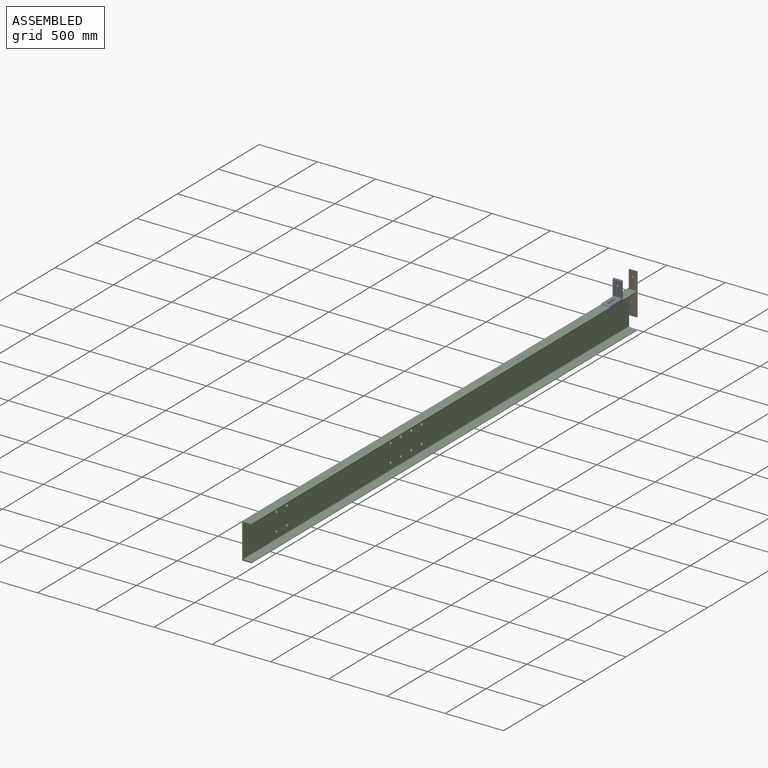
[diagram: assembled view]
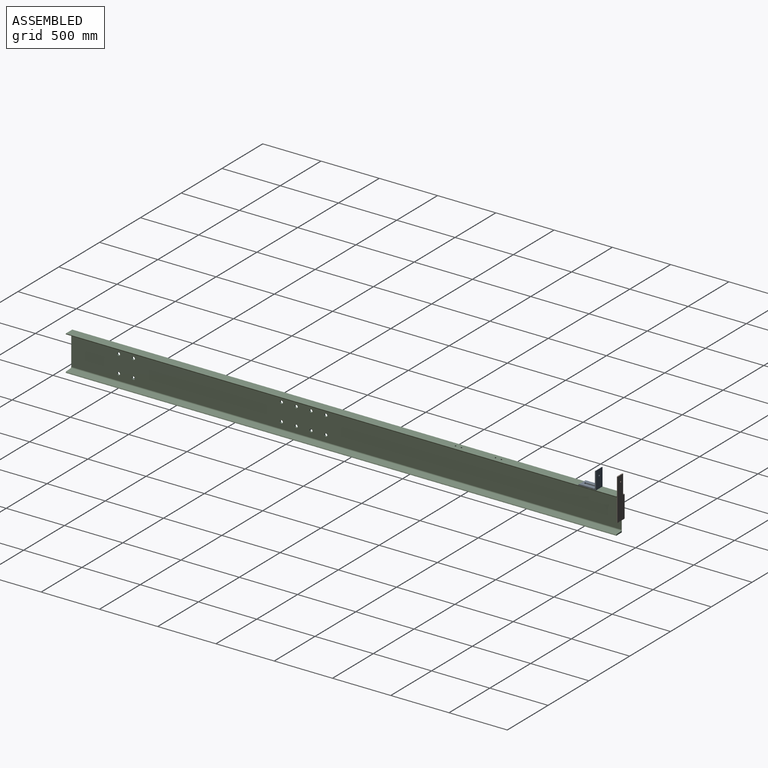
[diagram: assembled view, second angle]
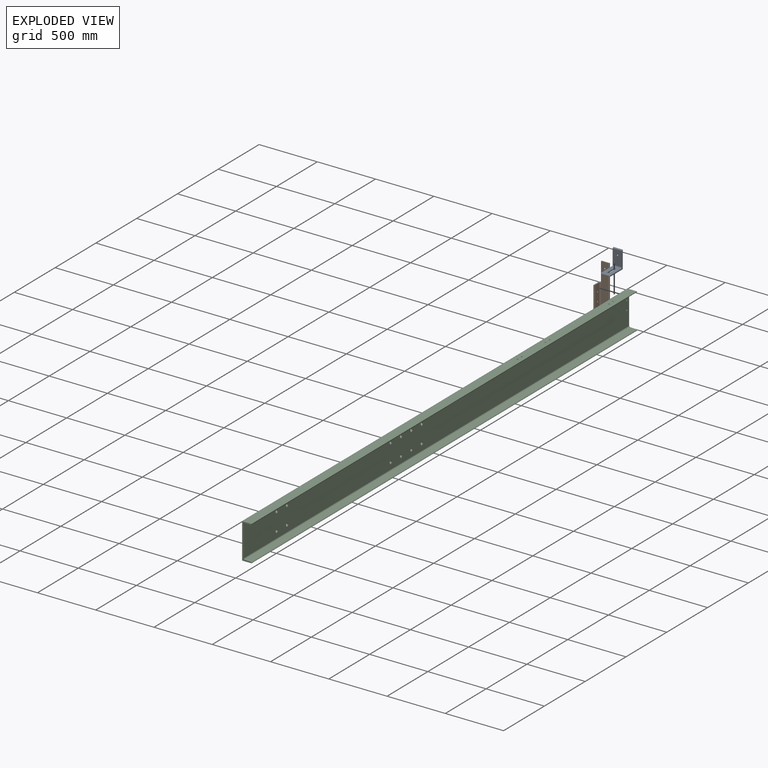
[diagram: exploded view]
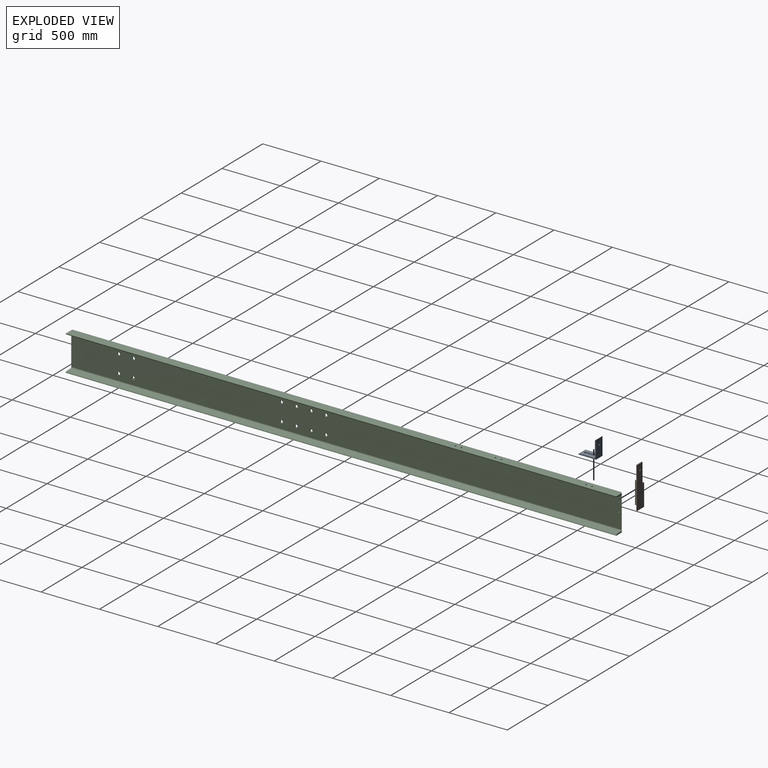
[diagram: exploded view, second angle]
ASSEMBLY  parts=3 mates=3
PART A: 14 faces, bbox 79.4x152.4x152.4 mm
  f0: plane 152.4x79.38mm, normal (0,1,0), area 11970.1mm2, adj f1,f6,f7,f8,f9
  f1: cylinder r=9.53mm len=79.38mm, axis (-1,0,0), area 1187.6mm2, adj f0,f2,f7,f8
  f2: plane 123.83x79.38mm, normal (0,-1,0), area 9701.9mm2, adj f1,f3,f7,f8,f9
  f3: cylinder r=9.53mm len=79.38mm, axis (-1,0,0), area 1187.6mm2, adj f2,f4,f7,f8
  f4: plane 123.83x79.38mm, normal (0,0,1), area 8556.9mm2, adj f3,f5,f7,f8,f10,f11,f12,f13
  f5: cylinder r=9.53mm len=79.38mm, axis (-1,0,0), area 1187.6mm2, adj f4,f6,f7,f8
  f6: plane 152.4x79.38mm, normal (0,0,-1), area 10825mm2, adj f0,f5,f7,f8,f10,f11,f12,f13
  f7: plane 152.4x152.4mm, normal (1,0,0), area 2793mm2, adj f0,f1,f2,f3,f4,f5,f6
  f8: plane 152.4x152.4mm, normal (-1,0,0), area 2793mm2, adj f0,f1,f2,f3,f4,f5,f6
  f9: cylinder r=6.35mm len=12.7mm, axis (0,1,0), area 380mm2, adj f0,f2
  f10: cylinder r=7.14mm len=14.29mm, axis (0,0,-1), area 213.8mm2, adj f4,f6,f11,f13
  f11: plane 77.79x9.53mm, normal (1,0,0), area 740.9mm2, adj f4,f6,f10,f12
  f12: cylinder r=7.14mm len=14.29mm, axis (0,0,-1), area 213.8mm2, adj f4,f6,f11,f13
  f13: plane 77.79x9.53mm, normal (-1,0,0), area 740.9mm2, adj f4,f6,f10,f12
PART B: 14 faces, bbox 355.6x88.9x76.2 mm
  f0: plane 190.5x76.2mm, normal (0,1,0), area 14262.7mm2, adj f1,f2,f8,f9,f10,f11
  f1: plane 355.6x88.9mm, normal (0,0,-1), area 28341mm2, adj f0,f6,f7,f8,f11,f12,f13
  f2: cylinder r=9.53mm len=190.5mm, axis (-1,0,0), area 2850.2mm2, adj f0,f3,f8,f11
  f3: plane 190.5x47.63mm, normal (0,-1,0), area 8819.2mm2, adj f2,f4,f8,f9,f10,f11
  f4: cylinder r=9.53mm len=190.5mm, axis (-1,0,0), area 2850.2mm2, adj f3,f5,f8,f11
  f5: plane 355.6x60.33mm, normal (0,0,1), area 21324.9mm2, adj f4,f6,f7,f8,f12,f13
  f6: cylinder r=9.53mm len=355.6mm, axis (-1,0,0), area 5320.4mm2, adj f1,f5,f7,f8
  f7: plane 69.85x9.53mm, normal (1,0,0), area 645.9mm2, adj f1,f5,f6,f12
  f8: plane 88.9x76.2mm, normal (-1,0,0), area 1462.4mm2, adj f0,f1,f2,f3,f4,f5,f6
  f9: cylinder r=6.35mm len=12.7mm, axis (0,1,0), area 380mm2, adj f0,f3
  f10: cylinder r=6.35mm len=12.7mm, axis (0,1,0), area 380mm2, adj f0,f3
  f11: plane 76.2x19.05mm, normal (1,0,0), area 816.5mm2, adj f0,f1,f2,f3,f4,f12
  f12: plane 165.1x9.53mm, normal (0,1,0), area 1572.6mm2, adj f1,f5,f7,f11
  f13: cylinder r=6.35mm len=12.7mm, axis (0,0,-1), area 380mm2, adj f1,f5
PART C: 33 faces, bbox 80.5x4724.4x304.8 mm
  f0: plane 4724.4x49.44mm, normal (0.05,0,-1), area 233105.3mm2, adj f1,f9,f10,f11,f12,f13,f14,f15
  f1: cylinder r=9.53mm len=4724.4mm, axis (0,1,0), area 68490.5mm2, adj f0,f2,f10,f11
  f2: plane 4724.4x80.52mm, normal (0,0,1), area 379558.5mm2, adj f1,f3,f10,f11,f12,f13,f14,f15
  f3: plane 4711.7x304.8mm, normal (-1,0,0), area 1429792.3mm2, adj f2,f4,f10,f18,f19,f20,f21,f22
  f4: plane 4724.4x80.52mm, normal (0,0,-1), area 380318.6mm2, adj f3,f5,f10,f11,f32
  f5: cylinder r=9.53mm len=4724.4mm, axis (0,1,0), area 68490.5mm2, adj f4,f6,f10,f11
  f6: plane 4724.4x49.44mm, normal (0.05,0,1), area 233866.3mm2, adj f5,f7,f10,f11
  f7: cylinder r=9.53mm len=4724.4mm, axis (0,1,0), area 68490.5mm2, adj f6,f8,f10,f11
  f8: plane 4724.4x261.92mm, normal (1,0,0), area 1231070.3mm2, adj f7,f9,f10,f11,f18,f19,f20,f21
  f9: cylinder r=9.53mm len=4724.4mm, axis (0,1,0), area 68490.5mm2, adj f0,f8,f10,f11
  f10: plane 304.8x80.52mm, normal (0,-1,0), area 5397mm2, adj f0,f1,f2,f3,f4,f5,f6,f7
  f11: plane 304.8x67.82mm, normal (0,1,0), area 1526.1mm2, adj f0,f1,f2,f4,f5,f6,f7,f8
  f12: cylinder r=6.35mm len=12.7mm, axis (0,0,1), area 441.5mm2, adj f0,f2
  f13: cylinder r=6.35mm len=12.7mm, axis (0,0,1), area 441.5mm2, adj f0,f2
  f14: cylinder r=6.35mm len=12.7mm, axis (0,0,1), area 441.5mm2, adj f0,f2
  f15: cylinder r=6.35mm len=12.7mm, axis (0,0,1), area 441.5mm2, adj f0,f2
  f16: cylinder r=6.35mm len=12.7mm, axis (0,0,1), area 441.5mm2, adj f0,f2
  f17: cylinder r=6.35mm len=12.7mm, axis (0,0,1), area 441.5mm2, adj f0,f2
  f18: cylinder r=6.35mm len=12.95mm, axis (1,0,0), area 516.8mm2, adj f3,f8
  f19: cylinder r=12.7mm len=25.4mm, axis (1,0,0), area 1033.7mm2, adj f3,f8
  f20: cylinder r=12.7mm len=25.4mm, axis (1,0,0), area 1033.7mm2, adj f3,f8
  f21: cylinder r=12.7mm len=25.4mm, axis (1,0,0), area 1033.7mm2, adj f3,f8
  f22: cylinder r=12.7mm len=25.4mm, axis (1,0,0), area 1033.7mm2, adj f3,f8
  f23: cylinder r=12.7mm len=25.4mm, axis (1,0,0), area 1033.7mm2, adj f3,f8
  f24: cylinder r=12.7mm len=25.4mm, axis (1,0,0), area 1033.7mm2, adj f3,f8
  f25: cylinder r=12.7mm len=25.4mm, axis (1,0,0), area 1033.7mm2, adj f3,f8
  f26: cylinder r=12.7mm len=25.4mm, axis (1,0,0), area 1033.7mm2, adj f3,f8
  f27: cylinder r=6.35mm len=12.95mm, axis (1,0,0), area 516.8mm2, adj f3,f8
  f28: cylinder r=12.7mm len=25.4mm, axis (1,0,0), area 1033.7mm2, adj f3,f8
  f29: cylinder r=12.7mm len=25.4mm, axis (1,0,0), area 1033.7mm2, adj f3,f8
  f30: cylinder r=12.7mm len=25.4mm, axis (1,0,0), area 1033.7mm2, adj f3,f8
  f31: cylinder r=12.7mm len=25.4mm, axis (1,0,0), area 1033.7mm2, adj f3,f8
  f32: plane 304.8x12.7mm, normal (-0.71,0.71,0), area 5474.4mm2, adj f2,f3,f4,f11
PLACE A rot(axis=(0,-0.11,-0.99),0deg) t=(-0.58,2188.67,304.8)mm
PLACE B rot(axis=(0.58,-0.58,0.58),120deg) t=(-49.79,2372.22,279.4)mm
PLACE C t=(-40.27,0.5,152.4)mm
MATE cylindrical B.f9 <-> C.f18  axis (1,0,0) through (-40.27,2334.12,228.6)mm
MATE planar A.f6 <-> C.f2  axis (0,0,-1) through (-7.72,2146.6,304.8)mm
MATE planar A.f8 <-> C.f3  axis (-1,0,0) through (-40.27,2147.76,345.71)mm
